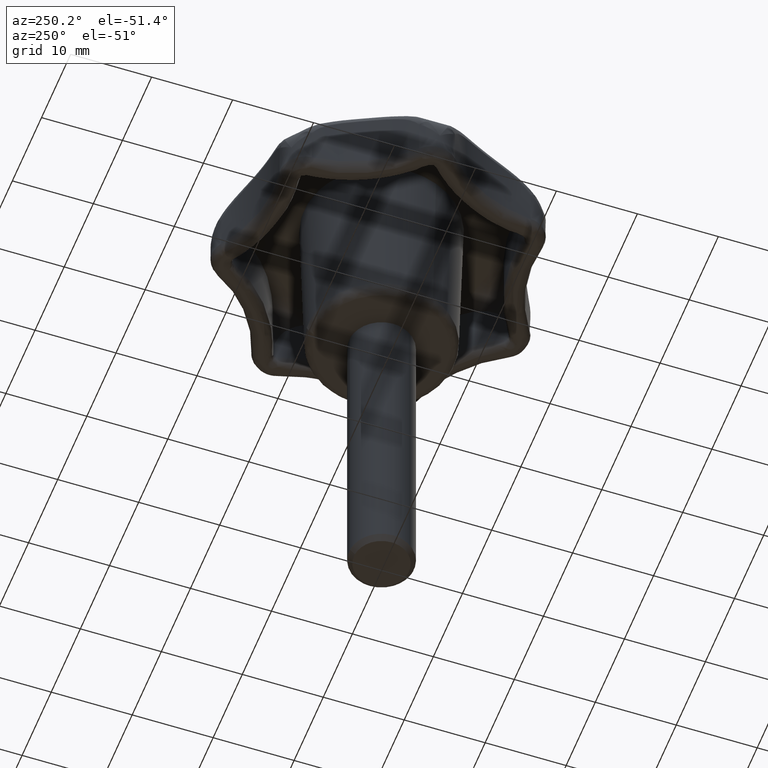
[diagram: clean part render]
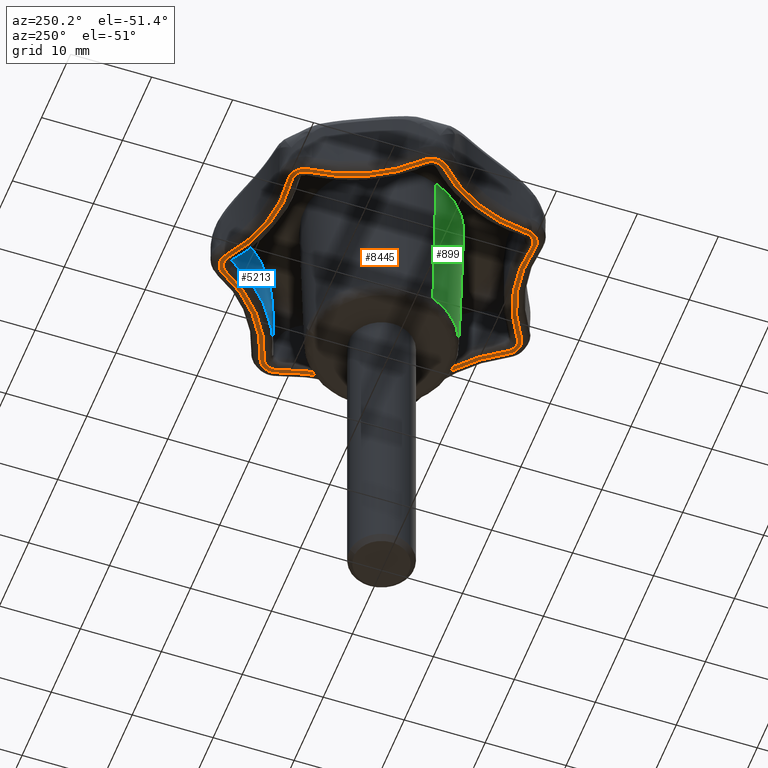
[diagram: same view with three faces highlighted in distinct colors, each labeled with its STEP entity id]
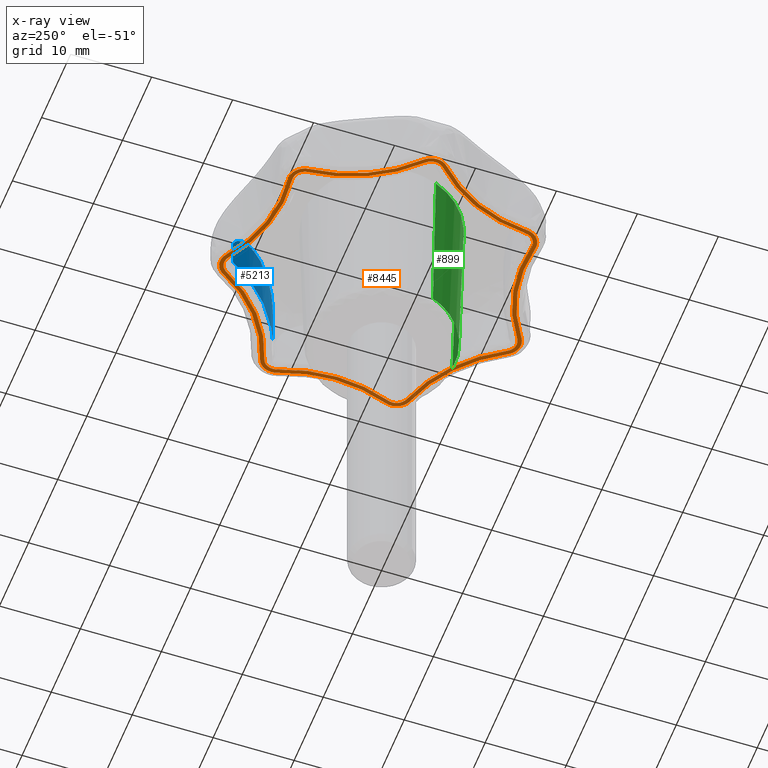
[diagram: x-ray of the same camera — body ghosted, the three highlighted faces saturated]
A machine part, auxiliary view with three faces highlighted in distinct colors.
The next image is the same camera in x-ray (body ghosted, the three faces saturated) — at least one of them is partly hidden behind the body in this view.
Their STEP definitions:

[orange] entity #8445 — the highlighted face is a freeform B-spline surface patch.
#3317=CARTESIAN_POINT('',(-10.370247791235879,-14.773539855309281,13.0));
#3318=VERTEX_POINT('',#3317);
#3332=CARTESIAN_POINT('',(-12.095539706740601,-13.397666142537860,13.0));
#3333=VERTEX_POINT('',#3332);
#3334=CARTESIAN_POINT('',(-12.095539706740601,-13.397666142537860,13.0));
#3335=CARTESIAN_POINT('',(-12.048824667085386,-14.053772167764524,13.000000000000002));
#3336=CARTESIAN_POINT('',(-11.534561740456139,-14.463883193662760,13.0));
#3337=CARTESIAN_POINT('',(-11.020298813826894,-14.873994219560998,13.000000000000002));
#3338=CARTESIAN_POINT('',(-10.370247791235879,-14.773539855309281,13.0));
#3346=(BOUNDED_CURVE()B_SPLINE_CURVE(2,(#3334,#3335,#3336,#3337,#3338),.UNSPECIFIED.,.F.,.U.)B_SPLINE_CURVE_WITH_KNOTS((3,2,3),(0.0,0.500000000000000,1.0),.UNSPECIFIED.)CURVE()GEOMETRIC_REPRESENTATION_ITEM()RATIONAL_B_SPLINE_CURVE((1.0,0.915816896265261,1.0,0.915816896265261,1.0))REPRESENTATION_ITEM(''));
#3347=EDGE_CURVE('',#3333,#3318,#3346,.T.);
#3399=CARTESIAN_POINT('',(-18.016161789334351,-1.103365405428676,13.0));
#3400=VERTEX_POINT('',#3399);
#3430=CARTESIAN_POINT('',(-18.016161789334351,-1.103365405428676,13.0));
#3431=CARTESIAN_POINT('',(-12.616845273540850,-6.075952862220074,13.0));
#3432=CARTESIAN_POINT('',(-12.095539706740590,-13.397666142537860,13.0));
#3440=(BOUNDED_CURVE()B_SPLINE_CURVE(2,(#3430,#3431,#3432),.UNSPECIFIED.,.F.,.U.)CURVE()GEOMETRIC_REPRESENTATION_ITEM()QUASI_UNIFORM_CURVE()RATIONAL_B_SPLINE_CURVE((1.0,0.929508306937984,1.0))REPRESENTATION_ITEM(''));
#3441=EDGE_CURVE('',#3400,#3333,#3440,.T.);
#3465=CARTESIAN_POINT('',(2.933271245927485,-17.809981425510799,13.0));
#3466=VERTEX_POINT('',#3465);
#3482=CARTESIAN_POINT('',(-10.370247791235890,-14.773539855309290,13.0));
#3483=CARTESIAN_POINT('',(-3.116103524666009,-13.652540758426285,13.000000000000002));
#3484=CARTESIAN_POINT('',(2.933271245927498,-17.809981425510781,13.0));
#3492=(BOUNDED_CURVE()B_SPLINE_CURVE(2,(#3482,#3483,#3484),.UNSPECIFIED.,.F.,.U.)CURVE()GEOMETRIC_REPRESENTATION_ITEM()QUASI_UNIFORM_CURVE()RATIONAL_B_SPLINE_CURVE((1.0,0.929508303227895,1.0))REPRESENTATION_ITEM(''));
#3493=EDGE_CURVE('',#3318,#3466,#3492,.T.);
#3529=CARTESIAN_POINT('',(-18.016161965031749,1.103365556503382,13.0));
#3530=VERTEX_POINT('',#3529);
#3562=CARTESIAN_POINT('',(-18.016161965031749,1.103365556503382,13.0));
#3563=CARTESIAN_POINT('',(-18.500000005896823,0.657766945333864,13.000000000000004));
#3564=CARTESIAN_POINT('',(-18.500000000000000,-0.000000013447360,13.0));
#3565=CARTESIAN_POINT('',(-18.499999994103188,-0.657766972228584,13.000000000000004));
#3566=CARTESIAN_POINT('',(-18.016161789334362,-1.103365405428682,13.0));
#3574=(BOUNDED_CURVE()B_SPLINE_CURVE(2,(#3562,#3563,#3564,#3565,#3566),.UNSPECIFIED.,.F.,.U.)B_SPLINE_CURVE_WITH_KNOTS((3,2,3),(0.0,0.500000000000000,1.0),.UNSPECIFIED.)CURVE()GEOMETRIC_REPRESENTATION_ITEM()RATIONAL_B_SPLINE_CURVE((1.0,0.915816902957122,1.0,0.915816902957122,1.0))REPRESENTATION_ITEM(''));
#3575=EDGE_CURVE('',#3530,#3400,#3574,.T.);
#3599=CARTESIAN_POINT('',(5.084674992935920,-17.318937606168099,13.0));
#3600=VERTEX_POINT('',#3599);
#3616=CARTESIAN_POINT('',(2.933271245927485,-17.809981425510799,13.0));
#3617=CARTESIAN_POINT('',(3.475361836711479,-18.182533777075072,12.999999999999996));
#3618=CARTESIAN_POINT('',(4.116637283850339,-18.036166894996420,13.0));
#3619=CARTESIAN_POINT('',(4.757912730989196,-17.889800012917775,12.999999999999996));
#3620=CARTESIAN_POINT('',(5.084674992935939,-17.318937606168110,13.0));
#3628=(BOUNDED_CURVE()B_SPLINE_CURVE(2,(#3616,#3617,#3618,#3619,#3620),.UNSPECIFIED.,.F.,.U.)B_SPLINE_CURVE_WITH_KNOTS((3,2,3),(0.0,0.500000000000000,1.0),.UNSPECIFIED.)CURVE()GEOMETRIC_REPRESENTATION_ITEM()RATIONAL_B_SPLINE_CURVE((1.0,0.915816887388591,1.0,0.915816887388591,1.0))REPRESENTATION_ITEM(''));
#3629=EDGE_CURVE('',#3466,#3600,#3628,.T.);
#3667=CARTESIAN_POINT('',(-12.095539318759840,13.397665264203701,13.0));
#3668=VERTEX_POINT('',#3667);
#3698=CARTESIAN_POINT('',(-12.095539318759840,13.397665264203701,13.0));
#3699=CARTESIAN_POINT('',(-12.616845183412671,6.075952296129842,13.000000000000004));
#3700=CARTESIAN_POINT('',(-18.016161965031749,1.103365556503394,13.0));
#3708=(BOUNDED_CURVE()B_SPLINE_CURVE(2,(#3698,#3699,#3700),.UNSPECIFIED.,.F.,.U.)CURVE()GEOMETRIC_REPRESENTATION_ITEM()QUASI_UNIFORM_CURVE()RATIONAL_B_SPLINE_CURVE((1.0,0.929508311938065,1.0))REPRESENTATION_ITEM(''));
#3709=EDGE_CURVE('',#3668,#3530,#3708,.T.);
#3733=CARTESIAN_POINT('',(15.753268127499100,-8.811018394491839,13.0));
#3734=VERTEX_POINT('',#3733);
#3750=CARTESIAN_POINT('',(5.084674992935920,-17.318937606168099,13.0));
#3751=CARTESIAN_POINT('',(8.731127266576173,-10.948488222354538,13.000000000000002));
#3752=CARTESIAN_POINT('',(15.753268127499100,-8.811018394491843,13.0));
#3760=(BOUNDED_CURVE()B_SPLINE_CURVE(2,(#3750,#3751,#3752),.UNSPECIFIED.,.F.,.U.)CURVE()GEOMETRIC_REPRESENTATION_ITEM()QUASI_UNIFORM_CURVE()RATIONAL_B_SPLINE_CURVE((1.0,0.929508313176671,1.0))REPRESENTATION_ITEM(''));
#3761=EDGE_CURVE('',#3600,#3734,#3760,.T.);
#3797=CARTESIAN_POINT('',(-10.370247847058760,14.773538863935720,13.0));
#3798=VERTEX_POINT('',#3797);
#3830=CARTESIAN_POINT('',(-10.370247847058760,14.773538863935720,13.0));
#3831=CARTESIAN_POINT('',(-11.020298812927003,14.873993194358425,13.000000000000005));
#3832=CARTESIAN_POINT('',(-11.534561704324769,14.463882222476601,13.0));
#3833=CARTESIAN_POINT('',(-12.048824595722531,14.053771250594767,13.000000000000005));
#3834=CARTESIAN_POINT('',(-12.095539318759840,13.397665264203701,13.0));
#3842=(BOUNDED_CURVE()B_SPLINE_CURVE(2,(#3830,#3831,#3832,#3833,#3834),.UNSPECIFIED.,.F.,.U.)B_SPLINE_CURVE_WITH_KNOTS((3,2,3),(0.0,0.500000000000000,1.0),.UNSPECIFIED.)CURVE()GEOMETRIC_REPRESENTATION_ITEM()RATIONAL_B_SPLINE_CURVE((1.0,0.915816910013133,1.0,0.915816910013133,1.0))REPRESENTATION_ITEM(''));
#3843=EDGE_CURVE('',#3798,#3668,#3842,.T.);
#3867=CARTESIAN_POINT('',(16.710732457984999,-6.822822230070020,13.0));
#3868=VERTEX_POINT('',#3867);
#3882=CARTESIAN_POINT('',(15.753268127499100,-8.811018394491839,13.0));
#3883=CARTESIAN_POINT('',(16.382528986414663,-8.619477072697960,13.000000000000007));
#3884=CARTESIAN_POINT('',(16.667923328278420,-8.026849553804688,13.0));
#3885=CARTESIAN_POINT('',(16.953317670142191,-7.434222034911417,13.000000000000007));
#3886=CARTESIAN_POINT('',(16.710732457984989,-6.822822230070026,13.0));
#3894=(BOUNDED_CURVE()B_SPLINE_CURVE(2,(#3882,#3883,#3884,#3885,#3886),.UNSPECIFIED.,.F.,.U.)B_SPLINE_CURVE_WITH_KNOTS((3,2,3),(0.0,0.500000000000000,1.0),.UNSPECIFIED.)CURVE()GEOMETRIC_REPRESENTATION_ITEM()RATIONAL_B_SPLINE_CURVE((1.0,0.915816914145454,1.0,0.915816914145454,1.0))REPRESENTATION_ITEM(''));
#3895=EDGE_CURVE('',#3734,#3868,#3894,.T.);
#3933=CARTESIAN_POINT('',(2.933271601452390,17.809980434922799,13.0));
#3934=VERTEX_POINT('',#3933);
#3964=CARTESIAN_POINT('',(2.933271601452390,17.809980434922799,13.0));
#3965=CARTESIAN_POINT('',(-3.116103380982524,13.652539713544783,13.000000000000004));
#3966=CARTESIAN_POINT('',(-10.370247847058760,14.773538863935720,13.0));
#3974=(BOUNDED_CURVE()B_SPLINE_CURVE(2,(#3964,#3965,#3966),.UNSPECIFIED.,.F.,.U.)CURVE()GEOMETRIC_REPRESENTATION_ITEM()QUASI_UNIFORM_CURVE()RATIONAL_B_SPLINE_CURVE((1.0,0.929508299691214,1.0))REPRESENTATION_ITEM(''));
#3975=EDGE_CURVE('',#3934,#3798,#3974,.T.);
#3999=CARTESIAN_POINT('',(16.710733191725250,6.822821426401480,13.0));
#4000=VERTEX_POINT('',#3999);
#4016=CARTESIAN_POINT('',(16.710732457984999,-6.822822230070020,13.0));
#4017=CARTESIAN_POINT('',(14.003641172365734,-0.000000256271142,13.000000000000004));
#4018=CARTESIAN_POINT('',(16.710733191725279,6.822821426401459,13.0));
#4026=(BOUNDED_CURVE()B_SPLINE_CURVE(2,(#4016,#4017,#4018),.UNSPECIFIED.,.F.,.U.)CURVE()GEOMETRIC_REPRESENTATION_ITEM()QUASI_UNIFORM_CURVE()RATIONAL_B_SPLINE_CURVE((1.0,0.929508309212109,1.0))REPRESENTATION_ITEM(''));
#4027=EDGE_CURVE('',#3868,#4000,#4026,.T.);
#4063=CARTESIAN_POINT('',(5.084674707422330,17.318936689256748,13.0));
#4064=VERTEX_POINT('',#4063);
#4096=CARTESIAN_POINT('',(5.084674707422330,17.318936689256748,13.0));
#4097=CARTESIAN_POINT('',(4.757912619138698,17.889799019469148,13.000000000000004));
#4098=CARTESIAN_POINT('',(4.116637324985123,18.036165885607680,13.0));
#4099=CARTESIAN_POINT('',(3.475362030831549,18.182532751746205,13.000000000000004));
#4100=CARTESIAN_POINT('',(2.933271601452398,17.809980434922789,13.0));
#4108=(BOUNDED_CURVE()B_SPLINE_CURVE(2,(#4096,#4097,#4098,#4099,#4100),.UNSPECIFIED.,.F.,.U.)B_SPLINE_CURVE_WITH_KNOTS((3,2,3),(0.0,0.500000000000000,1.0),.UNSPECIFIED.)CURVE()GEOMETRIC_REPRESENTATION_ITEM()RATIONAL_B_SPLINE_CURVE((1.0,0.915816921676813,1.0,0.915816921676813,1.0))REPRESENTATION_ITEM(''));
#4109=EDGE_CURVE('',#4064,#3934,#4108,.T.);
#4133=CARTESIAN_POINT('',(15.753267853876000,8.811016949412110,13.0));
#4134=VERTEX_POINT('',#4133);
#4148=CARTESIAN_POINT('',(16.710733191725250,6.822821426401480,13.0));
#4149=CARTESIAN_POINT('',(16.953317617282057,7.434221440424585,12.999999999999996));
#4150=CARTESIAN_POINT('',(16.667923201312270,8.026848817452576,13.0));
#4151=CARTESIAN_POINT('',(16.382528785342480,8.619476194480564,12.999999999999996));
#4152=CARTESIAN_POINT('',(15.753267853876000,8.811016949412096,13.0));
#4160=(BOUNDED_CURVE()B_SPLINE_CURVE(2,(#4148,#4149,#4150,#4151,#4152),.UNSPECIFIED.,.F.,.U.)B_SPLINE_CURVE_WITH_KNOTS((3,2,3),(0.0,0.500000000000000,1.0),.UNSPECIFIED.)CURVE()GEOMETRIC_REPRESENTATION_ITEM()RATIONAL_B_SPLINE_CURVE((1.0,0.915816935626653,1.0,0.915816935626653,1.0))REPRESENTATION_ITEM(''));
#4161=EDGE_CURVE('',#4000,#4134,#4160,.T.);
#4200=CARTESIAN_POINT('',(15.753267853876000,8.811016949412110,13.0));
#4201=CARTESIAN_POINT('',(8.731127110133723,10.948487324785972,12.999999999999996));
#4202=CARTESIAN_POINT('',(5.084674707422316,17.318936689256748,13.0));
#4210=(BOUNDED_CURVE()B_SPLINE_CURVE(2,(#4200,#4201,#4202),.UNSPECIFIED.,.F.,.U.)CURVE()GEOMETRIC_REPRESENTATION_ITEM()QUASI_UNIFORM_CURVE()RATIONAL_B_SPLINE_CURVE((1.0,0.929508312361436,1.0))REPRESENTATION_ITEM(''));
#4211=EDGE_CURVE('',#4134,#4064,#4210,.T.);
#4249=CARTESIAN_POINT('',(-12.594276759404041,13.433175337417900,13.0));
#4250=VERTEX_POINT('',#4249);
#4264=CARTESIAN_POINT('',(-18.354882369655549,1.471153888754194,13.0));
#4265=VERTEX_POINT('',#4264);
#4266=CARTESIAN_POINT('',(-18.354882369655549,1.471153888754194,13.0));
#4267=CARTESIAN_POINT('',(-13.101493283097827,6.309346553020190,13.000000000000004));
#4268=CARTESIAN_POINT('',(-12.594276759404041,13.433175337417900,13.0));
#4276=(BOUNDED_CURVE()B_SPLINE_CURVE(2,(#4266,#4267,#4268),.UNSPECIFIED.,.F.,.U.)CURVE()GEOMETRIC_REPRESENTATION_ITEM()QUASI_UNIFORM_CURVE()RATIONAL_B_SPLINE_CURVE((1.0,0.929508312801946,1.0))REPRESENTATION_ITEM(''));
#4277=EDGE_CURVE('',#4265,#4250,#4276,.T.);
#4327=CARTESIAN_POINT('',(-18.354883066381049,-1.471154559979804,13.0));
#4328=VERTEX_POINT('',#4327);
#4360=CARTESIAN_POINT('',(-18.354883066381049,-1.471154559979804,13.0));
#4361=CARTESIAN_POINT('',(-19.000000012668441,-0.877022589352295,12.999999999999996));
#4362=CARTESIAN_POINT('',(-19.0,0.000000028889655,13.0));
#4363=CARTESIAN_POINT('',(-18.999999987331556,0.877022647131606,12.999999999999996));
#4364=CARTESIAN_POINT('',(-18.354882369655549,1.471153888754189,13.0));
#4372=(BOUNDED_CURVE()B_SPLINE_CURVE(2,(#4360,#4361,#4362,#4363,#4364),.UNSPECIFIED.,.F.,.U.)B_SPLINE_CURVE_WITH_KNOTS((3,2,3),(0.0,0.500000000000000,1.0),.UNSPECIFIED.)CURVE()GEOMETRIC_REPRESENTATION_ITEM()RATIONAL_B_SPLINE_CURVE((1.0,0.915816901856767,1.0,0.915816901856767,1.0))REPRESENTATION_ITEM(''));
#4373=EDGE_CURVE('',#4328,#4265,#4372,.T.);
#4397=CARTESIAN_POINT('',(-10.293888045612920,15.267674158514950,13.0));
#4398=VERTEX_POINT('',#4397);
#4412=CARTESIAN_POINT('',(-12.594276759404030,13.433175337417900,13.0));
#4413=CARTESIAN_POINT('',(-12.531990468642737,14.307983318215928,13.0));
#4414=CARTESIAN_POINT('',(-11.846306619407979,14.854797952423301,13.0));
#4415=CARTESIAN_POINT('',(-11.160622770173223,15.401612586630661,13.0));
#4416=CARTESIAN_POINT('',(-10.293888045612920,15.267674158514939,13.0));
#4424=(BOUNDED_CURVE()B_SPLINE_CURVE(2,(#4412,#4413,#4414,#4415,#4416),.UNSPECIFIED.,.F.,.U.)B_SPLINE_CURVE_WITH_KNOTS((3,2,3),(0.0,0.500000000000000,1.0),.UNSPECIFIED.)CURVE()GEOMETRIC_REPRESENTATION_ITEM()RATIONAL_B_SPLINE_CURVE((1.0,0.915816910269852,1.0,0.915816910269852,1.0))REPRESENTATION_ITEM(''));
#4425=EDGE_CURVE('',#4250,#4398,#4424,.T.);
#4463=CARTESIAN_POINT('',(-12.594276778440500,-13.433176070051241,13.0));
#4464=VERTEX_POINT('',#4463);
#4494=CARTESIAN_POINT('',(-12.594276778440500,-13.433176070051241,13.0));
#4495=CARTESIAN_POINT('',(-13.101493427418546,-6.309347023527812,13.000000000000005));
#4496=CARTESIAN_POINT('',(-18.354883066381039,-1.471154559979798,13.0));
#4504=(BOUNDED_CURVE()B_SPLINE_CURVE(2,(#4494,#4495,#4496),.UNSPECIFIED.,.F.,.U.)CURVE()GEOMETRIC_REPRESENTATION_ITEM()QUASI_UNIFORM_CURVE()RATIONAL_B_SPLINE_CURVE((1.0,0.929508308015962,1.0))REPRESENTATION_ITEM(''));
#4505=EDGE_CURVE('',#4464,#4328,#4504,.T.);
#4529=CARTESIAN_POINT('',(2.650076643105120,18.222049372329600,13.0));
#4530=VERTEX_POINT('',#4529);
#4544=CARTESIAN_POINT('',(-10.293888045612920,15.267674158514950,13.0));
#4545=CARTESIAN_POINT('',(-3.235801617889424,14.176971768407487,13.000000000000007));
#4546=CARTESIAN_POINT('',(2.650076643105131,18.222049372329579,13.0));
#4554=(BOUNDED_CURVE()B_SPLINE_CURVE(2,(#4544,#4545,#4546),.UNSPECIFIED.,.F.,.U.)CURVE()GEOMETRIC_REPRESENTATION_ITEM()QUASI_UNIFORM_CURVE()RATIONAL_B_SPLINE_CURVE((1.0,0.929508299697733,1.0))REPRESENTATION_ITEM(''));
#4555=EDGE_CURVE('',#4398,#4530,#4554,.T.);
#4591=CARTESIAN_POINT('',(-10.293888063978139,-15.267674646690249,13.0));
#4592=VERTEX_POINT('',#4591);
#4624=CARTESIAN_POINT('',(-10.293888063978139,-15.267674646690249,13.0));
#4625=CARTESIAN_POINT('',(-11.160622803480761,-15.401613618407730,12.999999999999996));
#4626=CARTESIAN_POINT('',(-11.846306700729260,-14.854798887571709,13.0));
#4627=CARTESIAN_POINT('',(-12.531990597977760,-14.307984156735696,12.999999999999996));
#4628=CARTESIAN_POINT('',(-12.594276778440509,-13.433176070051241,13.0));
#4636=(BOUNDED_CURVE()B_SPLINE_CURVE(2,(#4624,#4625,#4626,#4627,#4628),.UNSPECIFIED.,.F.,.U.)B_SPLINE_CURVE_WITH_KNOTS((3,2,3),(0.0,0.500000000000000,1.0),.UNSPECIFIED.)CURVE()GEOMETRIC_REPRESENTATION_ITEM()RATIONAL_B_SPLINE_CURVE((1.0,0.915816893801436,1.0,0.915816893801436,1.0))REPRESENTATION_ITEM(''));
#4637=EDGE_CURVE('',#4592,#4464,#4636,.T.);
#4661=CARTESIAN_POINT('',(5.518614455309190,17.567324494349752,13.0));
#4662=VERTEX_POINT('',#4661);
#4676=CARTESIAN_POINT('',(2.650076643105120,18.222049372329600,13.0));
#4677=CARTESIAN_POINT('',(3.372863961991216,18.718785646368939,13.000000000000004));
#4678=CARTESIAN_POINT('',(4.227897678463117,18.523629867604249,13.0));
#4679=CARTESIAN_POINT('',(5.082931394935017,18.328474088839560,13.000000000000004));
#4680=CARTESIAN_POINT('',(5.518614455309193,17.567324494349759,13.0));
#4688=(BOUNDED_CURVE()B_SPLINE_CURVE(2,(#4676,#4677,#4678,#4679,#4680),.UNSPECIFIED.,.F.,.U.)B_SPLINE_CURVE_WITH_KNOTS((3,2,3),(0.0,0.500000000000000,1.0),.UNSPECIFIED.)CURVE()GEOMETRIC_REPRESENTATION_ITEM()RATIONAL_B_SPLINE_CURVE((1.0,0.915816924767604,1.0,0.915816924767604,1.0))REPRESENTATION_ITEM(''));
#4689=EDGE_CURVE('',#4530,#4662,#4688,.T.);
#4727=CARTESIAN_POINT('',(2.650076334789510,-18.222049925516249,13.0));
#4728=VERTEX_POINT('',#4727);
#4758=CARTESIAN_POINT('',(2.650076334789510,-18.222049925516249,13.0));
#4759=CARTESIAN_POINT('',(-3.235801879325684,-14.176972832902939,13.000000000000002));
#4760=CARTESIAN_POINT('',(-10.293888063978139,-15.267674646690271,13.0));
#4768=(BOUNDED_CURVE()B_SPLINE_CURVE(2,(#4758,#4759,#4760),.UNSPECIFIED.,.F.,.U.)CURVE()GEOMETRIC_REPRESENTATION_ITEM()QUASI_UNIFORM_CURVE()RATIONAL_B_SPLINE_CURVE((1.0,0.929508305508203,1.0))REPRESENTATION_ITEM(''));
#4769=EDGE_CURVE('',#4728,#4592,#4768,.T.);
#4793=CARTESIAN_POINT('',(15.898867310979650,9.289348741750031,13.0));
#4794=VERTEX_POINT('',#4793);
#4808=CARTESIAN_POINT('',(5.518614455309190,17.567324494349752,13.0));
#4809=CARTESIAN_POINT('',(9.066513904888605,11.369049204053152,13.000000000000002));
#4810=CARTESIAN_POINT('',(15.898867310979631,9.289348741750011,13.0));
#4818=(BOUNDED_CURVE()B_SPLINE_CURVE(2,(#4808,#4809,#4810),.UNSPECIFIED.,.F.,.U.)CURVE()GEOMETRIC_REPRESENTATION_ITEM()QUASI_UNIFORM_CURVE()RATIONAL_B_SPLINE_CURVE((1.0,0.929508310413389,1.0))REPRESENTATION_ITEM(''));
#4819=EDGE_CURVE('',#4662,#4794,#4818,.T.);
#4855=CARTESIAN_POINT('',(5.518614456761100,-17.567325076102051,13.0));
#4856=VERTEX_POINT('',#4855);
#4888=CARTESIAN_POINT('',(5.518614456761100,-17.567325076102051,13.0));
#4889=CARTESIAN_POINT('',(5.082931585080804,-18.328475077702279,12.999999999999998));
#4890=CARTESIAN_POINT('',(4.227897608533909,-18.523630883565129,13.0));
#4891=CARTESIAN_POINT('',(3.372863631987015,-18.718786689427983,12.999999999999998));
#4892=CARTESIAN_POINT('',(2.650076334789509,-18.222049925516249,13.0));
#4900=(BOUNDED_CURVE()B_SPLINE_CURVE(2,(#4888,#4889,#4890,#4891,#4892),.UNSPECIFIED.,.F.,.U.)B_SPLINE_CURVE_WITH_KNOTS((3,2,3),(0.0,0.500000000000000,1.0),.UNSPECIFIED.)CURVE()GEOMETRIC_REPRESENTATION_ITEM()RATIONAL_B_SPLINE_CURVE((1.0,0.915816881050120,1.0,0.915816881050120,1.0))REPRESENTATION_ITEM(''));
#4901=EDGE_CURVE('',#4856,#4728,#4900,.T.);
#4925=CARTESIAN_POINT('',(17.175486945281051,6.638421483489930,13.0));
#4926=VERTEX_POINT('',#4925);
#4942=CARTESIAN_POINT('',(15.898867310979650,9.289348741750031,13.0));
#4943=CARTESIAN_POINT('',(16.737881641696262,9.033960602469705,12.999999999999998));
#4944=CARTESIAN_POINT('',(17.118407541700549,8.243790881296716,13.0));
#4945=CARTESIAN_POINT('',(17.498933441704825,7.453621160123730,12.999999999999998));
#4946=CARTESIAN_POINT('',(17.175486945281040,6.638421483489935,13.0));
#4954=(BOUNDED_CURVE()B_SPLINE_CURVE(2,(#4942,#4943,#4944,#4945,#4946),.UNSPECIFIED.,.F.,.U.)B_SPLINE_CURVE_WITH_KNOTS((3,2,3),(0.0,0.500000000000000,1.0),.UNSPECIFIED.)CURVE()GEOMETRIC_REPRESENTATION_ITEM()RATIONAL_B_SPLINE_CURVE((1.0,0.915816952175501,1.0,0.915816952175501,1.0))REPRESENTATION_ITEM(''));
#4955=EDGE_CURVE('',#4794,#4926,#4954,.T.);
#4993=CARTESIAN_POINT('',(15.898867378720199,-9.289349192762559,13.0));
#4994=VERTEX_POINT('',#4993);
#5024=CARTESIAN_POINT('',(15.898867378720199,-9.289349192762559,13.0));
#5025=CARTESIAN_POINT('',(9.066514170840728,-11.369050029919730,12.999999999999998));
#5026=CARTESIAN_POINT('',(5.518614456761092,-17.567325076102051,13.0));
#5034=(BOUNDED_CURVE()B_SPLINE_CURVE(2,(#5024,#5025,#5026),.UNSPECIFIED.,.F.,.U.)CURVE()GEOMETRIC_REPRESENTATION_ITEM()QUASI_UNIFORM_CURVE()RATIONAL_B_SPLINE_CURVE((1.0,0.929508311837787,1.0))REPRESENTATION_ITEM(''));
#5035=EDGE_CURVE('',#4994,#4856,#5034,.T.);
#5059=CARTESIAN_POINT('',(17.175487519228451,-6.638421277086749,13.0));
#5060=VERTEX_POINT('',#5059);
#5074=CARTESIAN_POINT('',(17.175486945281051,6.638421483489930,13.0));
#5075=CARTESIAN_POINT('',(14.541559884312994,-0.000000010661016,13.000000000000004));
#5076=CARTESIAN_POINT('',(17.175487519228462,-6.638421277086744,13.0));
#5084=(BOUNDED_CURVE()B_SPLINE_CURVE(2,(#5074,#5075,#5076),.UNSPECIFIED.,.F.,.U.)CURVE()GEOMETRIC_REPRESENTATION_ITEM()QUASI_UNIFORM_CURVE()RATIONAL_B_SPLINE_CURVE((1.0,0.929508304690344,1.0))REPRESENTATION_ITEM(''));
#5085=EDGE_CURVE('',#4926,#5060,#5084,.T.);
#5122=CARTESIAN_POINT('',(17.175487519228451,-6.638421277086749,13.0));
#5123=CARTESIAN_POINT('',(17.498933552303747,-7.453621357234488,13.000000000000002));
#5124=CARTESIAN_POINT('',(17.118407787790449,-8.243791370285878,13.0));
#5125=CARTESIAN_POINT('',(16.737882023277148,-9.033961383337269,13.000000000000002));
#5126=CARTESIAN_POINT('',(15.898867378720199,-9.289349192762549,13.0));
#5134=(BOUNDED_CURVE()B_SPLINE_CURVE(2,(#5122,#5123,#5124,#5125,#5126),.UNSPECIFIED.,.F.,.U.)B_SPLINE_CURVE_WITH_KNOTS((3,2,3),(0.0,0.500000000000000,1.0),.UNSPECIFIED.)CURVE()GEOMETRIC_REPRESENTATION_ITEM()RATIONAL_B_SPLINE_CURVE((1.0,0.915816917787837,1.0,0.915816917787837,1.0))REPRESENTATION_ITEM(''));
#5135=EDGE_CURVE('',#5060,#4994,#5134,.T.);
#8408=CARTESIAN_POINT('',(-20.814004345044800,-20.429277584097719,13.0));
#8409=CARTESIAN_POINT('',(19.130410032422230,-20.429277584097719,13.0));
#8410=CARTESIAN_POINT('',(-20.814004345044800,20.429275221420369,13.0));
#8411=CARTESIAN_POINT('',(19.130410032422230,20.429275221420369,13.0));
#8412=B_SPLINE_SURFACE_WITH_KNOTS('',1,1,((#8408,#8410),(#8409,#8411)),.UNSPECIFIED.,.F.,.F.,.U.,(2,2),(2,2),(0.0,39.944414377467027),(0.0,40.858552805518087),.UNSPECIFIED.);
#8413=ORIENTED_EDGE('',*,*,#4373,.T.);
#8414=ORIENTED_EDGE('',*,*,#4277,.T.);
#8415=ORIENTED_EDGE('',*,*,#4425,.T.);
#8416=ORIENTED_EDGE('',*,*,#4555,.T.);
#8417=ORIENTED_EDGE('',*,*,#4689,.T.);
#8418=ORIENTED_EDGE('',*,*,#4819,.T.);
#8419=ORIENTED_EDGE('',*,*,#4955,.T.);
#8420=ORIENTED_EDGE('',*,*,#5085,.T.);
#8421=ORIENTED_EDGE('',*,*,#5135,.T.);
#8422=ORIENTED_EDGE('',*,*,#5035,.T.);
#8423=ORIENTED_EDGE('',*,*,#4901,.T.);
#8424=ORIENTED_EDGE('',*,*,#4769,.T.);
#8425=ORIENTED_EDGE('',*,*,#4637,.T.);
#8426=ORIENTED_EDGE('',*,*,#4505,.T.);
#8427=EDGE_LOOP('',(#8413,#8414,#8415,#8416,#8417,#8418,#8419,#8420,#8421,#8422,#8423,#8424,#8425,#8426));
#8428=FACE_OUTER_BOUND('',#8427,.T.);
#8429=ORIENTED_EDGE('',*,*,#3441,.T.);
#8430=ORIENTED_EDGE('',*,*,#3347,.T.);
#8431=ORIENTED_EDGE('',*,*,#3493,.T.);
#8432=ORIENTED_EDGE('',*,*,#3629,.T.);
#8433=ORIENTED_EDGE('',*,*,#3761,.T.);
#8434=ORIENTED_EDGE('',*,*,#3895,.T.);
#8435=ORIENTED_EDGE('',*,*,#4027,.T.);
#8436=ORIENTED_EDGE('',*,*,#4161,.T.);
#8437=ORIENTED_EDGE('',*,*,#4211,.T.);
#8438=ORIENTED_EDGE('',*,*,#4109,.T.);
#8439=ORIENTED_EDGE('',*,*,#3975,.T.);
#8440=ORIENTED_EDGE('',*,*,#3843,.T.);
#8441=ORIENTED_EDGE('',*,*,#3709,.T.);
#8442=ORIENTED_EDGE('',*,*,#3575,.T.);
#8443=EDGE_LOOP('',(#8429,#8430,#8431,#8432,#8433,#8434,#8435,#8436,#8437,#8438,#8439,#8440,#8441,#8442));
#8444=FACE_BOUND('',#8443,.T.);
#8445=ADVANCED_FACE('',(#8428,#8444),#8412,.F.);

[blue] entity #5213 — the highlighted face is a freeform B-spline surface patch.
#1918=CARTESIAN_POINT('',(4.216795628884120,16.822161597282751,17.414129523236500));
#1919=VERTEX_POINT('',#1918);
#1936=CARTESIAN_POINT('',(15.462069406531249,7.854354807731660,17.414130241480951));
#1937=VERTEX_POINT('',#1936);
#1938=CARTESIAN_POINT('',(4.216795628884120,16.822161597282751,17.414129523236500));
#1939=CARTESIAN_POINT('',(4.247243019576289,16.768968779544661,17.586081623582189));
#1940=CARTESIAN_POINT('',(4.283685148864607,16.705872177887080,17.751310772096222));
#1941=CARTESIAN_POINT('',(4.368294474480570,16.561811729145301,18.069369148049820));
#1942=CARTESIAN_POINT('',(4.416467983911304,16.480835581668430,18.222190404317072));
#1943=CARTESIAN_POINT('',(4.497813832184008,16.346812780065239,18.442455326108441));
#1944=CARTESIAN_POINT('',(4.526447776010218,16.300040386174029,18.514378655807761));
#1945=CARTESIAN_POINT('',(4.586849201982576,16.202391826264261,18.655246164434018));
#1946=CARTESIAN_POINT('',(4.618600550204520,16.151547082981971,18.724106779765521));
#1947=CARTESIAN_POINT('',(4.717235955956389,15.995310236439170,18.923469126874888));
#1948=CARTESIAN_POINT('',(4.787918421990909,15.885538095205380,19.047798459221909));
#1949=CARTESIAN_POINT('',(4.939068015383328,15.656427735617990,19.280949545802880));
#1950=CARTESIAN_POINT('',(5.019538748275988,15.537082776193261,19.389762475299481));
#1951=CARTESIAN_POINT('',(5.147695905483634,15.351869993031750,19.542226246720809));
#1952=CARTESIAN_POINT('',(5.191767695612746,15.288946052551710,19.591356482570230));
#1953=CARTESIAN_POINT('',(5.281532004854595,15.162426659195980,19.685251944981481));
#1954=CARTESIAN_POINT('',(5.327292039801828,15.098729738696770,19.730113446860958));
#1955=CARTESIAN_POINT('',(5.560407799733873,14.778420249482920,19.944769907001039));
#1956=CARTESIAN_POINT('',(5.760674644766676,14.516440736789569,20.085864067032581));
#1957=CARTESIAN_POINT('',(6.080883199016848,14.120227444617230,20.262771695196172));
#1958=CARTESIAN_POINT('',(6.190927650608376,13.987594506479420,20.315902544092278));
#1959=CARTESIAN_POINT('',(6.360891983204839,13.788327805073230,20.387914302378860));
#1960=CARTESIAN_POINT('',(6.418311220417462,13.721916384436449,20.410608115100349));
#1961=CARTESIAN_POINT('',(6.533995636828902,13.589932933547940,20.453337577237502));
#1962=CARTESIAN_POINT('',(6.592353414032865,13.524251721353050,20.473413399853492));
#1963=CARTESIAN_POINT('',(6.886690876087106,13.197462778176281,20.567905838451381));
#1964=CARTESIAN_POINT('',(7.130302375973857,12.941227505639000,20.624871113584192));
#1965=CARTESIAN_POINT('',(7.633290550148899,12.440416346821840,20.712155121682152));
#1966=CARTESIAN_POINT('',(7.892665912040858,12.195834173419870,20.742444715938699));
#1967=CARTESIAN_POINT('',(8.293437231944148,11.838334805262379,20.772305789893139));
#1968=CARTESIAN_POINT('',(8.428982021703650,11.720727999928700,20.779630235696921));
#1969=CARTESIAN_POINT('',(8.704001738568337,11.488712749772519,20.789357182963840));
#1970=CARTESIAN_POINT('',(8.843734548567019,11.374103884151950,20.791756007635350));
#1971=CARTESIAN_POINT('',(9.266292003199563,11.037225122906481,20.791680438307171));
#1972=CARTESIAN_POINT('',(9.552777208022173,10.821588976554740,20.782123968550909));
#1973=CARTESIAN_POINT('',(10.134877247979500,10.407877179838470,20.742325856929231));
#1974=CARTESIAN_POINT('',(10.430494476058350,10.209805404212480,20.712082730720649));
#1975=CARTESIAN_POINT('',(11.030121871188030,9.831232212988722,20.624863228683299));
#1976=CARTESIAN_POINT('',(11.334137618201529,9.650732896040800,20.567920908464050));
#1977=CARTESIAN_POINT('',(11.718681898832340,9.436250735798049,20.473299640353272));
#1978=CARTESIAN_POINT('',(11.795815674995200,9.393911944400619,20.453189632038558));
#1979=CARTESIAN_POINT('',(11.950508921015560,9.310355745708922,20.410368610952929));
#1980=CARTESIAN_POINT('',(12.028135584652350,9.269105322736133,20.387632591925311));
#1981=CARTESIAN_POINT('',(12.260103917386321,9.147823057000664,20.315627432732828));
#1982=CARTESIAN_POINT('',(12.413985440049730,9.070013093070463,20.262454078378639));
#1983=CARTESIAN_POINT('',(12.872321222211619,8.845643357682782,20.085138032675751));
#1984=CARTESIAN_POINT('',(13.173561522372561,8.708134274738253,19.943430868916089));
#1985=CARTESIAN_POINT('',(13.540266422318870,8.551166532613188,19.726747172386460));
#1986=CARTESIAN_POINT('',(13.612929632965511,8.520598472560913,19.681505703965620));
#1987=CARTESIAN_POINT('',(13.755618150077760,8.461552090108514,19.587766094236201));
#1988=CARTESIAN_POINT('',(13.825810912117911,8.433001736126405,19.539170779318120));
#1989=CARTESIAN_POINT('',(14.032728267494671,8.350187852322708,19.388009756382338));
#1990=CARTESIAN_POINT('',(14.165801338437619,8.298758485925987,19.280080930899778));
#1991=CARTESIAN_POINT('',(14.420925577554399,8.203084163989992,19.048628737940110));
#1992=CARTESIAN_POINT('',(14.542984248420030,8.158837160082999,18.925114754422680));
#1993=CARTESIAN_POINT('',(14.716563974084330,8.097661331304803,18.726825415784301));
#1994=CARTESIAN_POINT('',(14.772835496859880,8.078136279788986,18.658554601833359));
#1995=CARTESIAN_POINT('',(14.881933140300520,8.040805819234203,18.517366151673482));
#1996=CARTESIAN_POINT('',(14.934312791167271,8.023153627052015,18.445005257311362));
#1997=CARTESIAN_POINT('',(15.083863284766780,7.973394719534186,18.223887243990529));
#1998=CARTESIAN_POINT('',(15.173889260663019,7.944328687795411,18.070569750730350));
#1999=CARTESIAN_POINT('',(15.333645608759459,7.893741197934880,17.751731269455568));
#2000=CARTESIAN_POINT('',(15.403388749562790,7.872216616466310,17.586217677798171));
#2001=CARTESIAN_POINT('',(15.462069406531249,7.854354807731649,17.414130241480951));
#2002=B_SPLINE_CURVE_WITH_KNOTS('',3,(#1938,#1939,#1940,#1941,#1942,#1943,#1944,#1945,#1946,#1947,#1948,#1949,#1950,#1951,#1952,#1953,#1954,#1955,#1956,#1957,#1958,#1959,#1960,#1961,#1962,#1963,#1964,#1965,#1966,#1967,#1968,#1969,#1970,#1971,#1972,#1973,#1974,#1975,#1976,#1977,#1978,#1979,#1980,#1981,#1982,#1983,#1984,#1985,#1986,#1987,#1988,#1989,#1990,#1991,#1992,#1993,#1994,#1995,#1996,#1997,#1998,#1999,#2000,#2001),.UNSPECIFIED.,.F.,.U.,(4,2,2,2,2,2,2,2,2,2,2,2,2,2,2,2,2,2,2,2,2,2,2,2,2,2,2,2,2,2,2,4),(0.0,0.031249999999999,0.062499999999999,0.078124999999998,0.093749999999998,0.124999999999998,0.156249999999997,0.171874999999997,0.187499999999997,0.249999999999998,0.281249999999998,0.296874999999998,0.312499999999998,0.374999999999999,0.437500000000000,0.468750000000000,0.500000000000000,0.562500000000000,0.625000000000000,0.687500000000000,0.703125000000000,0.718750000000000,0.750000000000000,0.812500000000001,0.828125000000001,0.843750000000001,0.875000000000001,0.906250000000001,0.921875000000001,0.937500000000001,0.968750000000000,1.0),.UNSPECIFIED.);
#2003=EDGE_CURVE('',#1919,#1937,#2002,.T.);
#4065=CARTESIAN_POINT('',(4.216795628884120,16.822161597282751,14.000000000000121));
#4066=VERTEX_POINT('',#4065);
#4131=CARTESIAN_POINT('',(15.462069406531249,7.854354807731660,14.000000000000121));
#4132=VERTEX_POINT('',#4131);
#4214=CARTESIAN_POINT('',(4.216795628884120,16.822161597282751,14.000000000000121));
#4215=CARTESIAN_POINT('',(8.060353393981535,10.107363593837940,14.000000000000123));
#4216=CARTESIAN_POINT('',(15.462069406531249,7.854354807731643,14.000000000000121));
#4224=(BOUNDED_CURVE()B_SPLINE_CURVE(2,(#4214,#4215,#4216),.UNSPECIFIED.,.F.,.U.)CURVE()GEOMETRIC_REPRESENTATION_ITEM()QUASI_UNIFORM_CURVE()RATIONAL_B_SPLINE_CURVE((1.0,0.929508313414945,1.0))REPRESENTATION_ITEM(''));
#4225=EDGE_CURVE('',#4066,#4132,#4224,.T.);
#5185=CARTESIAN_POINT('',(4.132904901650349,16.970215152712150,20.961524289532601));
#5186=CARTESIAN_POINT('',(4.132904901650349,16.970215152712150,13.825961892761811));
#5187=CARTESIAN_POINT('',(8.171852767417137,9.769028708361136,20.961524289532601));
#5188=CARTESIAN_POINT('',(8.171852767417137,9.769028708361136,13.825961892761811));
#5189=CARTESIAN_POINT('',(16.153848553413482,7.657647799803075,20.961524289532605));
#5190=CARTESIAN_POINT('',(16.153848553413482,7.657647799803075,13.825961892761804));
#5198=(BOUNDED_SURFACE()B_SPLINE_SURFACE(1,2,((#5185,#5187,#5189),(#5186,#5188,#5190)),.UNSPECIFIED.,.F.,.F.,.U.)B_SPLINE_SURFACE_WITH_KNOTS((2,2),(3,3),(0.0,7.135562396770794),(0.0,15.832659625439449),.UNSPECIFIED.)GEOMETRIC_REPRESENTATION_ITEM()RATIONAL_B_SPLINE_SURFACE(((1.0,0.919058757711622,0.996098961743973),(1.0,0.919058757711622,0.996098961743973)))REPRESENTATION_ITEM('')SURFACE());
#5199=CARTESIAN_POINT('',(4.216795628884120,16.822161597282751,17.414129523236500));
#5200=CARTESIAN_POINT('',(4.216795628884120,16.822161597282751,14.000000000000121));
#5201=QUASI_UNIFORM_CURVE('',1,(#5199,#5200),.UNSPECIFIED.,.F.,.U.);
#5202=EDGE_CURVE('',#1919,#4066,#5201,.T.);
#5203=ORIENTED_EDGE('',*,*,#5202,.T.);
#5204=ORIENTED_EDGE('',*,*,#4225,.T.);
#5205=CARTESIAN_POINT('',(15.462069406531249,7.854354807731660,17.414130241480951));
#5206=CARTESIAN_POINT('',(15.462069406531249,7.854354807731660,14.000000000000121));
#5207=QUASI_UNIFORM_CURVE('',1,(#5205,#5206),.UNSPECIFIED.,.F.,.U.);
#5208=EDGE_CURVE('',#1937,#4132,#5207,.T.);
#5209=ORIENTED_EDGE('',*,*,#5208,.F.);
#5210=ORIENTED_EDGE('',*,*,#2003,.F.);
#5211=EDGE_LOOP('',(#5203,#5204,#5209,#5210));
#5212=FACE_OUTER_BOUND('',#5211,.T.);
#5213=ADVANCED_FACE('',(#5212),#5198,.T.);

[green] entity #899 — the highlighted face is a freeform B-spline surface patch.
#831=CARTESIAN_POINT('',(-8.400472428105228,-3.263252339683461,0.452844505014494));
#832=CARTESIAN_POINT('',(-8.390147613792831,-3.289348059649067,0.452844505014494));
#833=CARTESIAN_POINT('',(-5.930339851454463,-9.506453045074778,0.452844505014494));
#834=CARTESIAN_POINT('',(0.732443377534365,-8.982080632750909,0.452844505014494));
#835=CARTESIAN_POINT('',(0.757765136392512,-8.980087767108977,0.452844505014494));
#836=CARTESIAN_POINT('',(-8.934894012204701,-3.470854054898340,22.346965756780367));
#837=CARTESIAN_POINT('',(-8.923912353450803,-3.498609933399264,22.346965756780367));
#838=CARTESIAN_POINT('',(-6.307616444501667,-10.111234947401909,22.346965756780364));
#839=CARTESIAN_POINT('',(0.779039989026770,-9.553502990403555,22.346965756780360));
#840=CARTESIAN_POINT('',(0.805972668532175,-9.551383342557122,22.346965756780364));
#848=(BOUNDED_SURFACE()B_SPLINE_SURFACE(2,1,((#831,#836),(#832,#837),(#833,#838),(#834,#839),(#835,#840)),.UNSPECIFIED.,.F.,.F.,.U.)B_SPLINE_SURFACE_WITH_KNOTS((3,1,1,3),(2,2),(0.0,0.063100669245969,12.681492727187999,12.744584729453891),(0.0,21.901626658509581),.UNSPECIFIED.)GEOMETRIC_REPRESENTATION_ITEM()RATIONAL_B_SPLINE_SURFACE(((0.907680251492956,0.907680251492956),(0.906977210736326,0.906977210736326),(0.765685424949238,0.765685424949238),(1.001171573654722,1.001171573654722),(1.002343147309443,1.002343147309443)))REPRESENTATION_ITEM('')SURFACE());
#849=CARTESIAN_POINT('',(0.708117294782753,-8.997679572030760,0.973821906972202));
#850=VERTEX_POINT('',#849);
#851=CARTESIAN_POINT('',(-8.392495073948663,-3.320496088400812,0.973822023436165));
#852=VERTEX_POINT('',#851);
#853=CARTESIAN_POINT('',(0.708117294782753,-8.997679572030760,0.973821906972202));
#854=CARTESIAN_POINT('',(0.354605187956311,-9.025500971962108,0.973821910068988));
#855=CARTESIAN_POINT('',(-8.244557E-010,-9.025500972498904,0.973821913335729));
#856=CARTESIAN_POINT('',(-6.135306217164486,-9.025500981786419,0.973821969856219));
#857=CARTESIAN_POINT('',(-8.392495073948663,-3.320496088400811,0.973822023436164));
#865=(BOUNDED_CURVE()B_SPLINE_CURVE(2,(#853,#854,#855,#856,#857),.UNSPECIFIED.,.F.,.U.)B_SPLINE_CURVE_WITH_KNOTS((3,2,3),(0.736331593080772,0.750000000000000,0.937532684874871),.UNSPECIFIED.)CURVE()GEOMETRIC_REPRESENTATION_ITEM()RATIONAL_B_SPLINE_CURVE((0.969723966489294,0.983986465205501,1.0,0.780291793177081,0.890203345670525))REPRESENTATION_ITEM(''));
#866=EDGE_CURVE('',#850,#852,#865,.T.);
#867=ORIENTED_EDGE('',*,*,#866,.F.);
#868=CARTESIAN_POINT('',(0.750947101266560,-9.541687614171124,21.812961472348601));
#869=VERTEX_POINT('',#868);
#870=CARTESIAN_POINT('',(0.708117294782753,-8.997679572030760,0.973821906972202));
#871=CARTESIAN_POINT('',(0.750947101266560,-9.541687614171124,21.812961472348601));
#872=QUASI_UNIFORM_CURVE('',1,(#870,#871),.UNSPECIFIED.,.F.,.U.);
#873=EDGE_CURVE('',#850,#869,#872,.T.);
#874=ORIENTED_EDGE('',*,*,#873,.T.);
#875=CARTESIAN_POINT('',(-8.899904324477468,-3.521261711491423,21.812962523572160));
#876=VERTEX_POINT('',#875);
#877=CARTESIAN_POINT('',(0.750947101266560,-9.541687614171124,21.812961472348601));
#878=CARTESIAN_POINT('',(0.376056976581917,-9.571191905178427,21.812961515589006));
#879=CARTESIAN_POINT('',(0.000007630783226,-9.571191987374055,21.812961558692820));
#880=CARTESIAN_POINT('',(-6.506241501526399,-9.571193409488551,21.812962304457049));
#881=CARTESIAN_POINT('',(-8.899904324477468,-3.521261711491423,21.812962523572164));
#889=(BOUNDED_CURVE()B_SPLINE_CURVE(2,(#877,#878,#879,#880,#881),.UNSPECIFIED.,.F.,.U.)B_SPLINE_CURVE_WITH_KNOTS((3,2,3),(0.736331432563331,0.750000000000000,0.937532643539435),.UNSPECIFIED.)CURVE()GEOMETRIC_REPRESENTATION_ITEM()RATIONAL_B_SPLINE_CURVE((0.969723631501002,0.983986277147621,1.0,0.780291841604556,0.890203297217740))REPRESENTATION_ITEM(''));
#890=EDGE_CURVE('',#869,#876,#889,.T.);
#891=ORIENTED_EDGE('',*,*,#890,.T.);
#892=CARTESIAN_POINT('',(-8.392495073948663,-3.320496088400812,0.973822023436165));
#893=CARTESIAN_POINT('',(-8.899904324477468,-3.521261711491423,21.812962523572160));
#894=QUASI_UNIFORM_CURVE('',1,(#892,#893),.UNSPECIFIED.,.F.,.U.);
#895=EDGE_CURVE('',#852,#876,#894,.T.);
#896=ORIENTED_EDGE('',*,*,#895,.F.);
#897=EDGE_LOOP('',(#867,#874,#891,#896));
#898=FACE_OUTER_BOUND('',#897,.T.);
#899=ADVANCED_FACE('',(#898),#848,.T.);